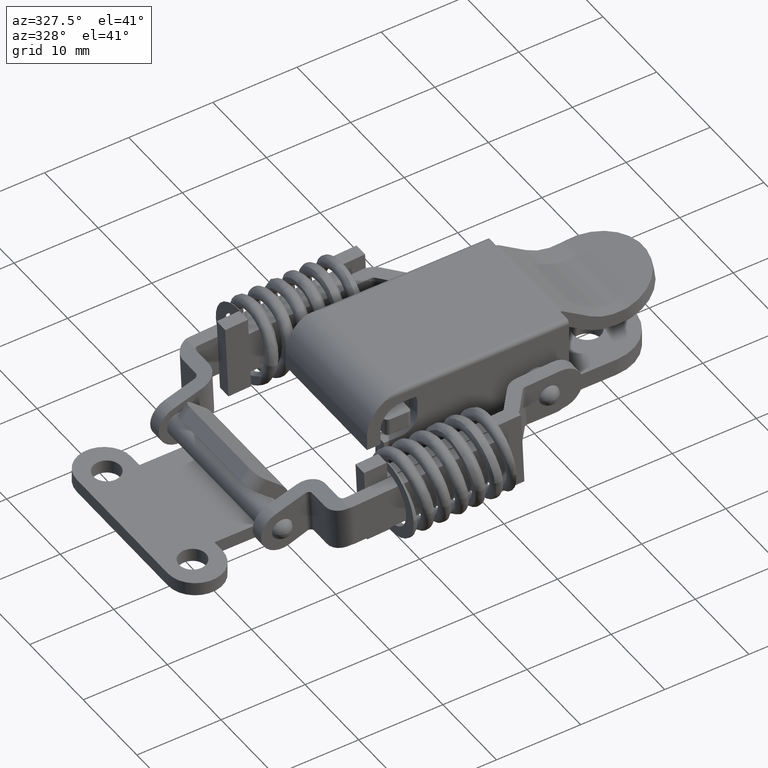
[diagram: clean part render]
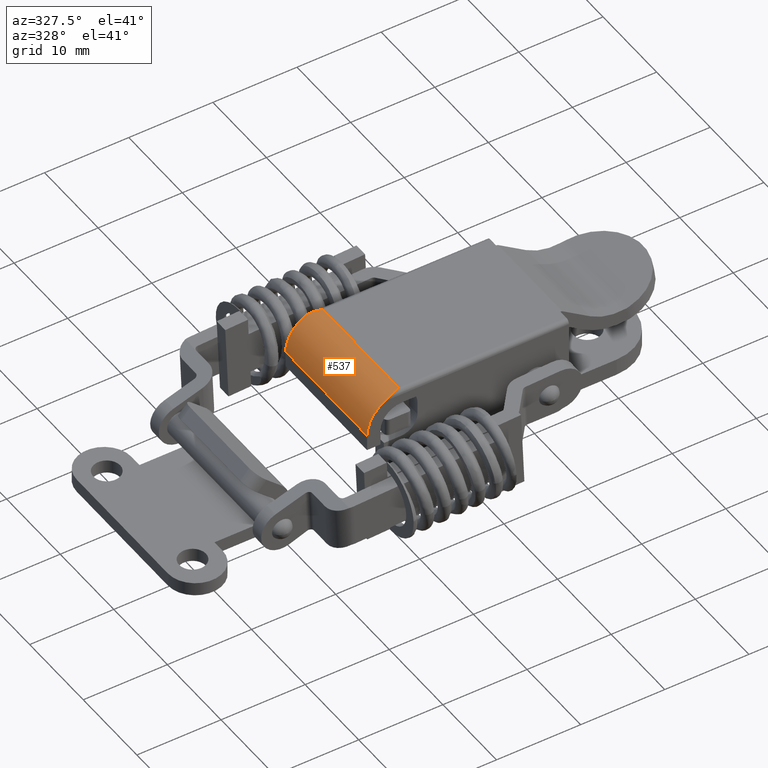
[diagram: same view with one face highlighted and labeled with its STEP entity id]
A machine part, auxiliary view. The second image highlights one B-rep face of the part: STEP entity #537.
In plain terms, the highlighted cylindrical surface (partial cylindrical patch) has radius 4.1 mm, axis along (0, -1, 0).
Its self-contained STEP definition (entity closure, byte-faithful):
#537=ADVANCED_FACE('',(#3101),#3100,.T.);
#3100=CYLINDRICAL_SURFACE('',#6349,4.10000000000E+00);
#3101=FACE_OUTER_BOUND('',#6350,.T.);
#6346=CARTESIAN_POINT('',(-1.58000000000E+01,7.59999990450E+00,1.90000000000E+00));
#6347=DIRECTION('',(0.00000000000E+00,-1.00000000000E+00,-0.00000000000E+00));
#6348=DIRECTION('',(-0.00000000000E+00,-0.00000000000E+00,-1.00000000000E+00));
#6349=AXIS2_PLACEMENT_3D('',#6346,#6347,#6348);
#6350=EDGE_LOOP('',(#13828,#13829,#13830,#13831,#13832,#13833));
#13828=ORIENTED_EDGE('',*,*,#15137,.T.);
#13829=ORIENTED_EDGE('',*,*,#15139,.T.);
#13830=ORIENTED_EDGE('',*,*,#15060,.T.);
#13831=ORIENTED_EDGE('',*,*,#15140,.F.);
#13832=ORIENTED_EDGE('',*,*,#15141,.F.);
#13833=ORIENTED_EDGE('',*,*,#15142,.F.);
#15060=EDGE_CURVE('',#19149,#19150,#19151,.T.);
#15137=EDGE_CURVE('',#19665,#19658,#19666,.T.);
#15139=EDGE_CURVE('',#19658,#19149,#19678,.T.);
#15140=EDGE_CURVE('',#19684,#19150,#19685,.T.);
#15141=EDGE_CURVE('',#19691,#19684,#19692,.T.);
#15142=EDGE_CURVE('',#19665,#19691,#19698,.T.);
#19149=VERTEX_POINT('',#23998);
#19150=VERTEX_POINT('',#23999);
#19151=CIRCLE('',#24003,4.10000000000E+00);
#19658=VERTEX_POINT('',#24305);
#19665=VERTEX_POINT('',#24309);
#19666=LINE('',#24310,#24311);
#19678=(BOUNDED_CURVE() B_SPLINE_CURVE(3,(#24316,#24317,#24318,#24319,#24320,#24321,#24322,#24323,#24324,#24325),.UNSPECIFIED.,.F.,.F.) B_SPLINE_CURVE_WITH_KNOTS((4,2,2,2,4),(-2.11217174339E-03,-1.58412880754E-03,-1.05608587169E-03,-5.28042935847E-04,-0.00000000000E+00),.UNSPECIFIED.) CURVE() GEOMETRIC_REPRESENTATION_ITEM() RATIONAL_B_SPLINE_CURVE((1.00000000000E+00,1.00000000000E+00,1.00000000000E+00,1.00000000000E+00,1.00000000000E+00,1.00000000000E+00,1.00000000000E+00,1.00000000000E+00,1.00000000000E+00,1.00000000000E+00)) REPRESENTATION_ITEM('') );
#19684=VERTEX_POINT('',#24326);
#19685=LINE('',#24327,#24328);
#19691=VERTEX_POINT('',#24330);
#19692=CIRCLE('',#24334,4.10000000000E+00);
#19698=(BOUNDED_CURVE() B_SPLINE_CURVE(3,(#24335,#24336,#24337,#24338,#24339,#24340,#24341,#24342,#24343,#24344),.UNSPECIFIED.,.F.,.F.) B_SPLINE_CURVE_WITH_KNOTS((4,2,2,2,4),(-2.11217174339E-03,-1.58412880754E-03,-1.05608587169E-03,-5.28042935847E-04,-1.82006461622E-20),.UNSPECIFIED.) CURVE() GEOMETRIC_REPRESENTATION_ITEM() RATIONAL_B_SPLINE_CURVE((1.00000000000E+00,1.00000000000E+00,1.00000000000E+00,1.00000000000E+00,1.00000000000E+00,1.00000000000E+00,1.00000000000E+00,1.00000000000E+00,1.00000000000E+00,1.00000000000E+00)) REPRESENTATION_ITEM('') );
#23998=CARTESIAN_POINT('',(-1.77621416870E+01,1.52000000000E+01,5.50000000000E+00));
#23999=CARTESIAN_POINT('',(-1.99000000000E+01,1.52000000000E+01,1.90000000000E+00));
#24000=CARTESIAN_POINT('',(-1.58000000000E+01,1.52000000000E+01,1.90000000000E+00));
#24001=DIRECTION('',(0.00000000000E+00,-1.00000000000E+00,0.00000000000E+00));
#24002=DIRECTION('',(4.78571143173E-01,-0.00000000000E+00,-8.78048780491E-01));
#24003=AXIS2_PLACEMENT_3D('',#24000,#24001,#24002);
#24305=CARTESIAN_POINT('',(-1.58000000000E+01,1.47000000000E+01,6.00000000000E+00));
#24309=CARTESIAN_POINT('',(-1.58000000000E+01,4.99999999743E-01,6.00000000000E+00));
#24310=CARTESIAN_POINT('',(-1.58000000000E+01,4.99999999743E-01,6.00000000000E+00));
#24311=VECTOR('',#24312,1.42000000003E+01);
#24312=DIRECTION('',(0.00000000000E+00,1.00000000000E+00,0.00000000000E+00));
#24316=CARTESIAN_POINT('',(-1.58000000000E+01,1.47000000000E+01,6.00000000000E+00));
#24317=CARTESIAN_POINT('',(-1.59661735060E+01,1.47580298540E+01,6.00000000000E+00));
#24318=CARTESIAN_POINT('',(-1.61333653255E+01,1.48164255159E+01,5.98981653148E+00));
#24319=CARTESIAN_POINT('',(-1.64639495637E+01,1.49271489277E+01,5.94930891367E+00));
#24320=CARTESIAN_POINT('',(-1.66284973862E+01,1.49799573191E+01,5.91900111747E+00));
#24321=CARTESIAN_POINT('',(-1.69576753899E+01,1.50748188056E+01,5.83682176289E+00));
#24322=CARTESIAN_POINT('',(-1.71232312220E+01,1.51171171896E+01,5.78447636582E+00));
#24323=CARTESIAN_POINT('',(-1.74466472167E+01,1.51792630052E+01,5.65880971147E+00));
#24324=CARTESIAN_POINT('',(-1.76054101568E+01,1.52000000000E+01,5.58542485252E+00));
#24325=CARTESIAN_POINT('',(-1.77621416870E+01,1.52000000000E+01,5.50000000000E+00));
#24326=CARTESIAN_POINT('',(-1.99000000000E+01,-2.56595092396E-10,1.90000000000E+00));
#24327=CARTESIAN_POINT('',(-1.99000000000E+01,-2.56595092396E-10,1.90000000000E+00));
#24328=VECTOR('',#24329,1.52000000003E+01);
#24329=DIRECTION('',(0.00000000000E+00,1.00000000000E+00,0.00000000000E+00));
#24330=CARTESIAN_POINT('',(-1.77621416870E+01,-2.56595092396E-10,5.50000000000E+00));
#24331=CARTESIAN_POINT('',(-1.58000000000E+01,-2.56595092396E-10,1.90000000000E+00));
#24332=DIRECTION('',(0.00000000000E+00,-1.00000000000E+00,0.00000000000E+00));
#24333=DIRECTION('',(4.78571143173E-01,-0.00000000000E+00,-8.78048780491E-01));
#24334=AXIS2_PLACEMENT_3D('',#24331,#24332,#24333);
#24335=CARTESIAN_POINT('',(-1.58000000000E+01,4.99999999743E-01,6.00000000000E+00));
#24336=CARTESIAN_POINT('',(-1.59661735060E+01,4.41970145701E-01,6.00000000000E+00));
#24337=CARTESIAN_POINT('',(-1.61333653255E+01,3.83574483876E-01,5.98981653148E+00));
#24338=CARTESIAN_POINT('',(-1.64639495637E+01,2.72851072041E-01,5.94930891367E+00));
#24339=CARTESIAN_POINT('',(-1.66284973862E+01,2.20042680604E-01,5.91900111747E+00));
#24340=CARTESIAN_POINT('',(-1.69576753899E+01,1.25181194150E-01,5.83682176289E+00));
#24341=CARTESIAN_POINT('',(-1.71232312220E+01,8.28828101035E-02,5.78447636582E+00));
#24342=CARTESIAN_POINT('',(-1.74466472167E+01,2.07369945520E-02,5.65880971147E+00));
#24343=CARTESIAN_POINT('',(-1.76054101568E+01,-2.56591617232E-10,5.58542485252E+00));
#24344=CARTESIAN_POINT('',(-1.77621416870E+01,-2.56591622949E-10,5.50000000000E+00));